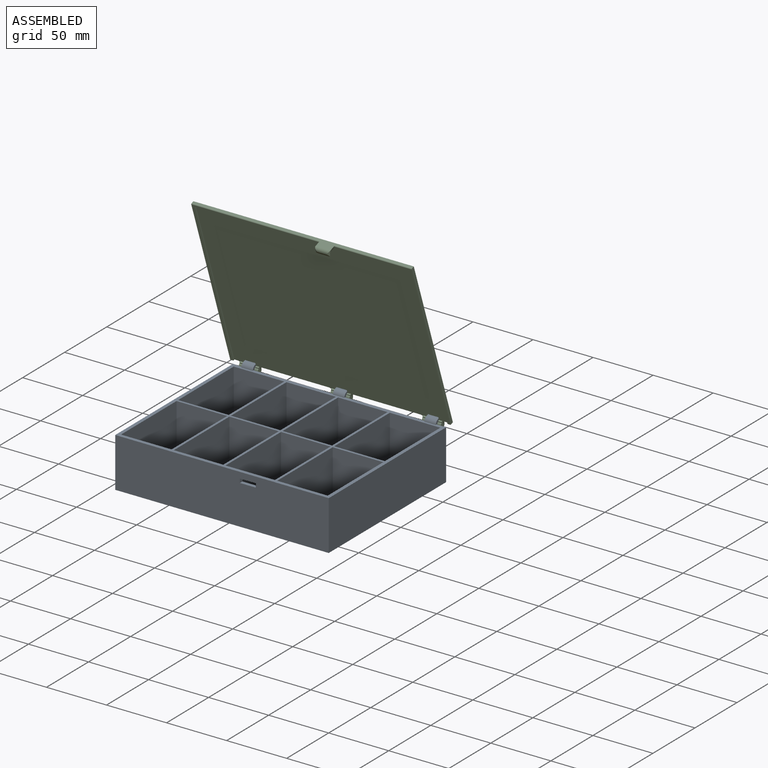
[diagram: assembled view]
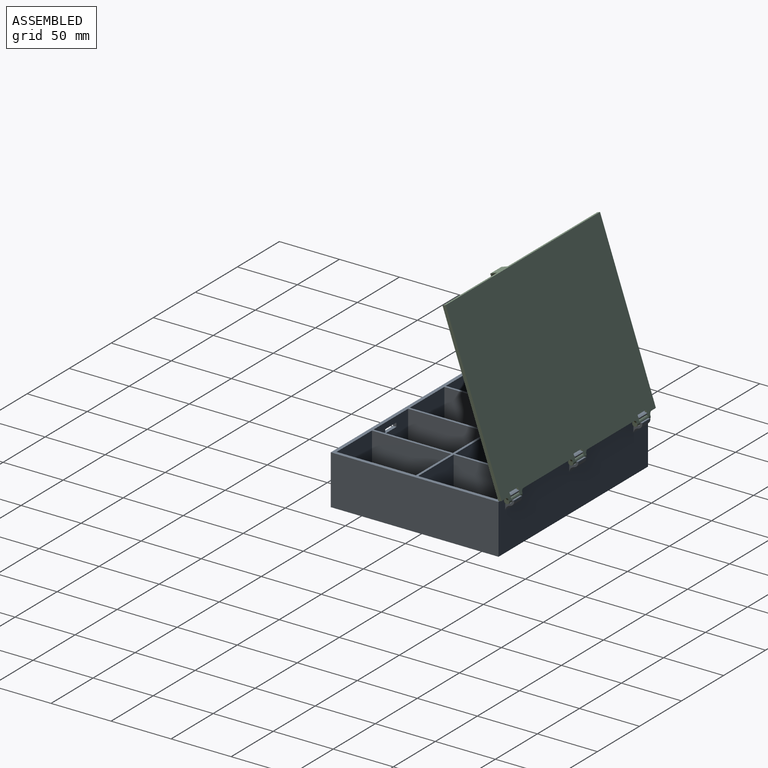
[diagram: assembled view, second angle]
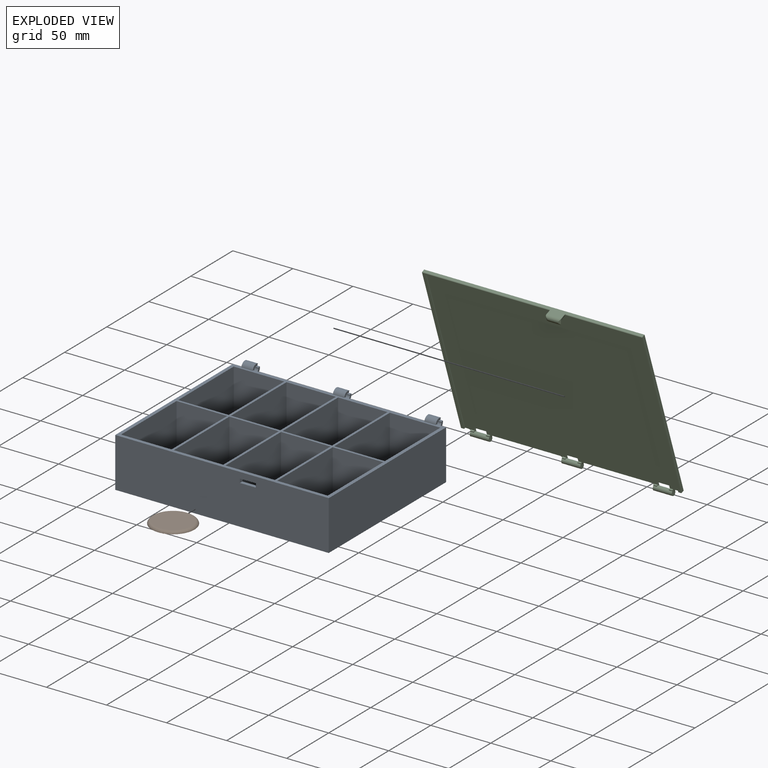
[diagram: exploded view]
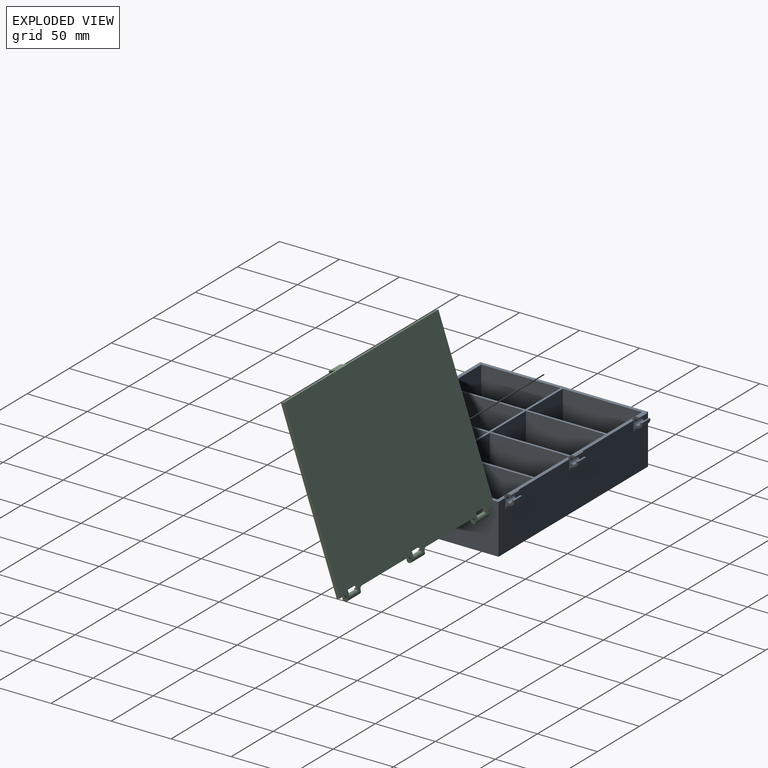
[diagram: exploded view, second angle]
ASSEMBLY  parts=3 mates=5
PART A: 208 faces, bbox 177.8x147.2x45 mm
  f0: cylinder r=0.76mm len=2.86mm, axis (0,0,-1), area 3.4mm2, adj f1,f15,f125,f132
  f1: plane 11.94x2.86mm, normal (0,1,0), area 34.1mm2, adj f0,f2,f125,f132
  f2: plane 2.86x2.86mm, normal (-1,0,0), area 8.2mm2, adj f1,f3,f125,f132
  f3: plane 11.94x2.86mm, normal (0,-1,0), area 34.1mm2, adj f2,f4,f125,f132
  f4: cylinder r=0.76mm len=2.86mm, axis (0,0,-1), area 3.4mm2, adj f3,f5,f125,f132
  f5: plane 11.94x2.86mm, normal (-1,0,0), area 34.1mm2, adj f4,f6,f125,f132
  f6: plane 2.86x2.86mm, normal (0,-1,0), area 8.2mm2, adj f5,f7,f125,f132
  f7: plane 11.94x2.86mm, normal (1,0,0), area 34.1mm2, adj f6,f8,f125,f132
  f8: cylinder r=0.76mm len=2.86mm, axis (0,0,-1), area 3.4mm2, adj f7,f9,f125,f132
  f9: plane 11.94x2.86mm, normal (0,-1,0), area 34.1mm2, adj f8,f10,f125,f132
  f10: plane 2.86x2.86mm, normal (1,0,0), area 8.2mm2, adj f9,f11,f125,f132
  f11: plane 11.94x2.86mm, normal (0,1,0), area 34.1mm2, adj f10,f12,f125,f132
  f12: cylinder r=0.76mm len=2.86mm, axis (0,0,-1), area 3.4mm2, adj f11,f13,f125,f132
  f13: plane 11.94x2.86mm, normal (1,0,0), area 34.1mm2, adj f12,f14,f125,f132
  f14: plane 2.86x2.86mm, normal (0,1,0), area 8.2mm2, adj f13,f15,f125,f132
  f15: plane 11.94x2.86mm, normal (-1,0,0), area 34.1mm2, adj f0,f14,f125,f132
  f16: cylinder r=0.76mm len=2.86mm, axis (0,0,-1), area 3.4mm2, adj f17,f31,f126,f132
  f17: plane 11.94x2.86mm, normal (0,1,0), area 34.1mm2, adj f16,f18,f126,f132
  f18: plane 2.86x2.86mm, normal (-1,0,0), area 8.2mm2, adj f17,f19,f126,f132
  f19: plane 11.94x2.86mm, normal (0,-1,0), area 34.1mm2, adj f18,f20,f126,f132
  f20: cylinder r=0.76mm len=2.86mm, axis (0,0,-1), area 3.4mm2, adj f19,f21,f126,f132
  f21: plane 11.94x2.86mm, normal (-1,0,0), area 34.1mm2, adj f20,f22,f126,f132
  f22: plane 2.86x2.86mm, normal (0,-1,0), area 8.2mm2, adj f21,f23,f126,f132
  f23: plane 11.94x2.86mm, normal (1,0,0), area 34.1mm2, adj f22,f24,f126,f132
  f24: cylinder r=0.76mm len=2.86mm, axis (0,0,-1), area 3.4mm2, adj f23,f25,f126,f132
  f25: plane 11.94x2.86mm, normal (0,-1,0), area 34.1mm2, adj f24,f26,f126,f132
  f26: plane 2.86x2.86mm, normal (1,0,0), area 8.2mm2, adj f25,f27,f126,f132
  f27: plane 11.94x2.86mm, normal (0,1,0), area 34.1mm2, adj f26,f28,f126,f132
  f28: cylinder r=0.76mm len=2.86mm, axis (0,0,-1), area 3.4mm2, adj f27,f29,f126,f132
  f29: plane 11.94x2.86mm, normal (1,0,0), area 34.1mm2, adj f28,f30,f126,f132
  f30: plane 2.86x2.86mm, normal (0,1,0), area 8.2mm2, adj f29,f31,f126,f132
  f31: plane 11.94x2.86mm, normal (-1,0,0), area 34.1mm2, adj f16,f30,f126,f132
  f32: cylinder r=0.76mm len=2.86mm, axis (0,0,-1), area 3.4mm2, adj f33,f47,f132,f137
  f33: plane 11.94x2.86mm, normal (0,1,0), area 34.1mm2, adj f32,f34,f132,f137
  f34: plane 2.86x2.86mm, normal (-1,0,0), area 8.2mm2, adj f33,f35,f132,f137
  f35: plane 11.94x2.86mm, normal (0,-1,0), area 34.1mm2, adj f34,f36,f132,f137
  f36: cylinder r=0.76mm len=2.86mm, axis (0,0,-1), area 3.4mm2, adj f35,f37,f132,f137
  f37: plane 11.94x2.86mm, normal (-1,0,0), area 34.1mm2, adj f36,f38,f132,f137
  f38: plane 2.86x2.86mm, normal (0,-1,0), area 8.2mm2, adj f37,f39,f132,f137
  f39: plane 11.94x2.86mm, normal (1,0,0), area 34.1mm2, adj f38,f40,f132,f137
  f40: cylinder r=0.76mm len=2.86mm, axis (0,0,-1), area 3.4mm2, adj f39,f41,f132,f137
  f41: plane 11.94x2.86mm, normal (0,-1,0), area 34.1mm2, adj f40,f42,f132,f137
  f42: plane 2.86x2.86mm, normal (1,0,0), area 8.2mm2, adj f41,f43,f132,f137
  f43: plane 11.94x2.86mm, normal (0,1,0), area 34.1mm2, adj f42,f44,f132,f137
  f44: cylinder r=0.76mm len=2.86mm, axis (0,0,-1), area 3.4mm2, adj f43,f45,f132,f137
  f45: plane 11.94x2.86mm, normal (1,0,0), area 34.1mm2, adj f44,f46,f132,f137
  f46: plane 2.86x2.86mm, normal (0,1,0), area 8.2mm2, adj f45,f47,f132,f137
  f47: plane 11.94x2.86mm, normal (-1,0,0), area 34.1mm2, adj f32,f46,f132,f137
  f48: cylinder r=0.76mm len=2.86mm, axis (0,0,-1), area 3.4mm2, adj f49,f63,f124,f132
  f49: plane 11.94x2.86mm, normal (0,1,0), area 34.1mm2, adj f48,f50,f124,f132
  f50: plane 2.86x2.86mm, normal (-1,0,0), area 8.2mm2, adj f49,f51,f124,f132
  f51: plane 11.94x2.86mm, normal (0,-1,0), area 34.1mm2, adj f50,f52,f124,f132
  f52: cylinder r=0.76mm len=2.86mm, axis (0,0,-1), area 3.4mm2, adj f51,f53,f124,f132
  f53: plane 11.94x2.86mm, normal (-1,0,0), area 34.1mm2, adj f52,f54,f124,f132
  f54: plane 2.86x2.86mm, normal (0,-1,0), area 8.2mm2, adj f53,f55,f124,f132
  f55: plane 11.94x2.86mm, normal (1,0,0), area 34.1mm2, adj f54,f56,f124,f132
  f56: cylinder r=0.76mm len=2.86mm, axis (0,0,-1), area 3.4mm2, adj f55,f57,f124,f132
  f57: plane 11.94x2.86mm, normal (0,-1,0), area 34.1mm2, adj f56,f58,f124,f132
  f58: plane 2.86x2.86mm, normal (1,0,0), area 8.2mm2, adj f57,f59,f124,f132
  f59: plane 11.94x2.86mm, normal (0,1,0), area 34.1mm2, adj f58,f60,f124,f132
  f60: cylinder r=0.76mm len=2.86mm, axis (0,0,-1), area 3.4mm2, adj f59,f61,f124,f132
  f61: plane 11.94x2.86mm, normal (1,0,0), area 34.1mm2, adj f60,f62,f124,f132
  f62: plane 2.86x2.86mm, normal (0,1,0), area 8.2mm2, adj f61,f63,f124,f132
  f63: plane 11.94x2.86mm, normal (-1,0,0), area 34.1mm2, adj f48,f62,f124,f132
  f64: cylinder r=0.76mm len=2.86mm, axis (0,0,-1), area 3.4mm2, adj f65,f79,f123,f132
  f65: plane 11.94x2.86mm, normal (0,1,0), area 34.1mm2, adj f64,f66,f123,f132
  f66: plane 2.86x2.86mm, normal (-1,0,0), area 8.2mm2, adj f65,f67,f123,f132
  f67: plane 11.94x2.86mm, normal (0,-1,0), area 34.1mm2, adj f66,f68,f123,f132
  f68: cylinder r=0.76mm len=2.86mm, axis (0,0,-1), area 3.4mm2, adj f67,f69,f123,f132
  f69: plane 11.94x2.86mm, normal (-1,0,0), area 34.1mm2, adj f68,f70,f123,f132
  f70: plane 2.86x2.86mm, normal (0,-1,0), area 8.2mm2, adj f69,f71,f123,f132
  f71: plane 11.94x2.86mm, normal (1,0,0), area 34.1mm2, adj f70,f72,f123,f132
  f72: cylinder r=0.76mm len=2.86mm, axis (0,0,-1), area 3.4mm2, adj f71,f73,f123,f132
  f73: plane 11.94x2.86mm, normal (0,-1,0), area 34.1mm2, adj f72,f74,f123,f132
  f74: plane 2.86x2.86mm, normal (1,0,0), area 8.2mm2, adj f73,f75,f123,f132
  f75: plane 11.94x2.86mm, normal (0,1,0), area 34.1mm2, adj f74,f76,f123,f132
  f76: cylinder r=0.76mm len=2.86mm, axis (0,0,-1), area 3.4mm2, adj f75,f77,f123,f132
  f77: plane 11.94x2.86mm, normal (1,0,0), area 34.1mm2, adj f76,f78,f123,f132
  f78: plane 2.86x2.86mm, normal (0,1,0), area 8.2mm2, adj f77,f79,f123,f132
  f79: plane 11.94x2.86mm, normal (-1,0,0), area 34.1mm2, adj f64,f78,f123,f132
  f80: cylinder r=0.76mm len=2.86mm, axis (0,0,-1), area 3.4mm2, adj f81,f95,f122,f132
  f81: plane 11.94x2.86mm, normal (0,1,0), area 34.1mm2, adj f80,f82,f122,f132
  f82: plane 2.86x2.86mm, normal (-1,0,0), area 8.2mm2, adj f81,f83,f122,f132
  f83: plane 11.94x2.86mm, normal (0,-1,0), area 34.1mm2, adj f82,f84,f122,f132
  f84: cylinder r=0.76mm len=2.86mm, axis (0,0,-1), area 3.4mm2, adj f83,f85,f122,f132
  f85: plane 11.94x2.86mm, normal (-1,0,0), area 34.1mm2, adj f84,f86,f122,f132
  f86: plane 2.86x2.86mm, normal (0,-1,0), area 8.2mm2, adj f85,f87,f122,f132
  f87: plane 11.94x2.86mm, normal (1,0,0), area 34.1mm2, adj f86,f88,f122,f132
  f88: cylinder r=0.76mm len=2.86mm, axis (0,0,-1), area 3.4mm2, adj f87,f89,f122,f132
  f89: plane 11.94x2.86mm, normal (0,-1,0), area 34.1mm2, adj f88,f90,f122,f132
  f90: plane 2.86x2.86mm, normal (1,0,0), area 8.2mm2, adj f89,f91,f122,f132
  f91: plane 11.94x2.86mm, normal (0,1,0), area 34.1mm2, adj f90,f92,f122,f132
  f92: cylinder r=0.76mm len=2.86mm, axis (0,0,-1), area 3.4mm2, adj f91,f93,f122,f132
  f93: plane 11.94x2.86mm, normal (1,0,0), area 34.1mm2, adj f92,f94,f122,f132
  f94: plane 2.86x2.86mm, normal (0,1,0), area 8.2mm2, adj f93,f95,f122,f132
  f95: plane 11.94x2.86mm, normal (-1,0,0), area 34.1mm2, adj f80,f94,f122,f132
  f96: cylinder r=0.76mm len=2.86mm, axis (0,0,-1), area 3.4mm2, adj f97,f111,f121,f132
  f97: plane 11.94x2.86mm, normal (0,1,0), area 34.1mm2, adj f96,f98,f121,f132
  f98: plane 2.86x2.86mm, normal (-1,0,0), area 8.2mm2, adj f97,f99,f121,f132
  f99: plane 11.94x2.86mm, normal (0,-1,0), area 34.1mm2, adj f98,f100,f121,f132
  f100: cylinder r=0.76mm len=2.86mm, axis (0,0,-1), area 3.4mm2, adj f99,f101,f121,f132
  f101: plane 11.94x2.86mm, normal (-1,0,0), area 34.1mm2, adj f100,f102,f121,f132
  f102: plane 2.86x2.86mm, normal (0,-1,0), area 8.2mm2, adj f101,f103,f121,f132
  f103: plane 11.94x2.86mm, normal (1,0,0), area 34.1mm2, adj f102,f104,f121,f132
  f104: cylinder r=0.76mm len=2.86mm, axis (0,0,-1), area 3.4mm2, adj f103,f105,f121,f132
  f105: plane 11.94x2.86mm, normal (0,-1,0), area 34.1mm2, adj f104,f106,f121,f132
  f106: plane 2.86x2.86mm, normal (1,0,0), area 8.2mm2, adj f105,f107,f121,f132
  f107: plane 11.94x2.86mm, normal (0,1,0), area 34.1mm2, adj f106,f108,f121,f132
  f108: cylinder r=0.76mm len=2.86mm, axis (0,0,-1), area 3.4mm2, adj f107,f109,f121,f132
  f109: plane 11.94x2.86mm, normal (1,0,0), area 34.1mm2, adj f108,f110,f121,f132
  f110: plane 2.86x2.86mm, normal (0,1,0), area 8.2mm2, adj f109,f111,f121,f132
  f111: plane 11.94x2.86mm, normal (-1,0,0), area 34.1mm2, adj f96,f110,f121,f132
  f112: plane 66.04x38.42mm, normal (-1,0,0), area 2537.1mm2, adj f114,f123,f127,f150
  f113: plane 41.12x38.42mm, normal (0,-1,0), area 1579.6mm2, adj f121,f127,f141,f148
  f114: plane 42.07x38.42mm, normal (0,-1,0), area 1616.2mm2, adj f112,f123,f127,f145
  f115: plane 41.12x38.42mm, normal (0,-1,0), area 1579.6mm2, adj f122,f127,f144,f149
  f116: plane 66.04x38.42mm, normal (1,0,0), area 2537.1mm2, adj f120,f127,f134,f157
  f117: plane 41.12x38.42mm, normal (0,1,0), area 1579.6mm2, adj f127,f137,f139,f147
  f118: plane 42.07x38.42mm, normal (0,1,0), area 1616.2mm2, adj f125,f127,f133,f142
  f119: plane 41.12x38.42mm, normal (0,1,0), area 1536.6mm2, adj f126,f127,f143,f146,f204,f205,f206,f207
  f120: plane 66.04x42.07mm, normal (0,0,1), area 2624.4mm2, adj f116,f134,f140,f157,f158,f159,f160,f161
  f121: plane 66.04x41.12mm, normal (0,0,1), area 2561.5mm2, adj f96,f97,f98,f99,f100,f101,f102,f103
  f122: plane 66.04x41.12mm, normal (0,0,1), area 2561.5mm2, adj f80,f81,f82,f83,f84,f85,f86,f87
  f123: plane 66.04x42.07mm, normal (0,0,1), area 2624.4mm2, adj f64,f65,f66,f67,f68,f69,f70,f71
  f124: plane 66.04x42.07mm, normal (0,0,1), area 2624.4mm2, adj f48,f49,f50,f51,f52,f53,f54,f55
  f125: plane 66.04x42.07mm, normal (0,0,1), area 2624.4mm2, adj f0,f1,f2,f3,f4,f5,f6,f7
  f126: plane 66.04x41.12mm, normal (0,0,1), area 2561.5mm2, adj f16,f17,f18,f19,f20,f21,f22,f23
  f127: plane 177.8x139.7mm, normal (0,0,1), area 2831.5mm2, adj f112,f113,f114,f115,f116,f117,f118,f119
  f128: plane 139.7x41.28mm, normal (1,0,0), area 5766.1mm2, adj f127,f129,f131,f132
  f129: plane 177.8x41.53mm, normal (0,1,0), area 7057.7mm2, adj f127,f128,f130,f132,f179,f180,f186,f187
  f130: plane 139.7x41.28mm, normal (-1,0,0), area 5766.1mm2, adj f127,f129,f131,f132
  f131: plane 177.8x41.28mm, normal (0,-1,0), area 7295.8mm2, adj f127,f128,f130,f132,f204,f205,f206,f207
  f132: plane 177.8x139.7mm, normal (0,0,-1), area 23608.1mm2, adj f0,f1,f2,f3,f4,f5,f6,f7
  f133: plane 66.04x38.42mm, normal (-1,0,0), area 2537.1mm2, adj f118,f125,f127,f151
  f134: plane 42.07x38.42mm, normal (0,-1,0), area 1616.2mm2, adj f116,f120,f127,f140
  f135: plane 66.04x38.42mm, normal (1,0,0), area 2537.1mm2, adj f124,f127,f136,f156
  f136: plane 42.07x38.42mm, normal (0,1,0), area 1616.2mm2, adj f124,f127,f135,f138
  f137: plane 66.04x41.12mm, normal (0,0,1), area 2561.5mm2, adj f32,f33,f34,f35,f36,f37,f38,f39
  f138: plane 66.04x38.42mm, normal (-1,0,0), area 2537.1mm2, adj f124,f127,f136,f156
  f139: plane 66.04x38.42mm, normal (1,0,0), area 2537.1mm2, adj f117,f127,f137,f153
  f140: plane 66.04x38.42mm, normal (-1,0,0), area 2537.1mm2, adj f120,f127,f134,f157
  f141: plane 66.04x38.42mm, normal (1,0,0), area 2537.1mm2, adj f113,f121,f127,f152
  f142: plane 66.04x38.42mm, normal (1,0,0), area 2537.1mm2, adj f118,f125,f127,f151
  f143: plane 66.04x38.42mm, normal (-1,0,0), area 2537.1mm2, adj f119,f126,f127,f155
  f144: plane 66.04x38.42mm, normal (-1,0,0), area 2537.1mm2, adj f115,f122,f127,f154
  f145: plane 66.04x38.42mm, normal (1,0,0), area 2537.1mm2, adj f114,f123,f127,f150
  f146: plane 66.04x38.42mm, normal (1,0,0), area 2537.1mm2, adj f119,f126,f127,f155
  f147: plane 66.04x38.42mm, normal (-1,0,0), area 2537.1mm2, adj f117,f127,f137,f153
  f148: plane 66.04x38.42mm, normal (-1,0,0), area 2537.1mm2, adj f113,f121,f127,f152
  f149: plane 66.04x38.42mm, normal (1,0,0), area 2537.1mm2, adj f115,f122,f127,f154
  f150: plane 42.07x38.42mm, normal (0,1,0), area 1616.2mm2, adj f112,f123,f127,f145
  f151: plane 42.07x38.42mm, normal (0,-1,0), area 1616.2mm2, adj f125,f127,f133,f142
  f152: plane 41.12x38.42mm, normal (0,1,0), area 1579.6mm2, adj f121,f127,f141,f148
  f153: plane 41.12x38.42mm, normal (0,-1,0), area 1579.6mm2, adj f127,f137,f139,f147
  f154: plane 41.12x38.42mm, normal (0,1,0), area 1579.6mm2, adj f122,f127,f144,f149
  f155: plane 41.12x38.42mm, normal (0,-1,0), area 1579.6mm2, adj f126,f127,f143,f146
  f156: plane 42.07x38.42mm, normal (0,-1,0), area 1616.2mm2, adj f124,f127,f135,f138
  f157: plane 42.07x38.42mm, normal (0,1,0), area 1616.2mm2, adj f116,f120,f127,f140
  f158: cylinder r=0.76mm len=2.86mm, axis (0,0,-1), area 3.4mm2, adj f120,f132,f159,f173
  f159: plane 11.94x2.86mm, normal (0,1,0), area 34.1mm2, adj f120,f132,f158,f160
  f160: plane 2.86x2.86mm, normal (-1,0,0), area 8.2mm2, adj f120,f132,f159,f161
  f161: plane 11.94x2.86mm, normal (0,-1,0), area 34.1mm2, adj f120,f132,f160,f162
  f162: cylinder r=0.76mm len=2.86mm, axis (0,0,-1), area 3.4mm2, adj f120,f132,f161,f163
  f163: plane 11.94x2.86mm, normal (-1,0,0), area 34.1mm2, adj f120,f132,f162,f164
  f164: plane 2.86x2.86mm, normal (0,-1,0), area 8.2mm2, adj f120,f132,f163,f165
  f165: plane 11.94x2.86mm, normal (1,0,0), area 34.1mm2, adj f120,f132,f164,f166
  f166: cylinder r=0.76mm len=2.86mm, axis (0,0,-1), area 3.4mm2, adj f120,f132,f165,f167
  f167: plane 11.94x2.86mm, normal (0,-1,0), area 34.1mm2, adj f120,f132,f166,f168
  f168: plane 2.86x2.86mm, normal (1,0,0), area 8.2mm2, adj f120,f132,f167,f169
  f169: plane 11.94x2.86mm, normal (0,1,0), area 34.1mm2, adj f120,f132,f168,f170
  f170: cylinder r=0.76mm len=2.86mm, axis (0,0,-1), area 3.4mm2, adj f120,f132,f169,f171
  f171: plane 11.94x2.86mm, normal (1,0,0), area 34.1mm2, adj f120,f132,f170,f172
  f172: plane 2.86x2.86mm, normal (0,1,0), area 8.2mm2, adj f120,f132,f171,f173
  f173: plane 11.94x2.86mm, normal (-1,0,0), area 34.1mm2, adj f120,f132,f158,f172
  f174: cylinder r=4.32mm len=9.53mm, axis (-1,0,0), area 63.4mm2, adj f178,f179,f180,f203
  f175: cylinder r=2.54mm len=9.53mm, axis (-1,0,0), area 128.8mm2, adj f176,f178,f179,f180
  f176: plane 9.53x1.61mm, normal (0,0.91,-0.42), area 16.9mm2, adj f175,f177,f179,f180
  f177: cylinder r=4.32mm len=10.03mm, axis (-1,0,0), area 76.5mm2, adj f127,f176,f179,f180,f199,f200
  f178: plane 9.53x1.75mm, normal (0,-0.17,0.98), area 16.9mm2, adj f174,f175,f179,f180
  f179: plane 13.52x8.54mm, normal (1,0,0), area 35.3mm2, adj f129,f174,f175,f176,f177,f178,f199,f203
  f180: plane 13.52x8.54mm, normal (-1,0,0), area 35.3mm2, adj f129,f174,f175,f176,f177,f178,f200,f203
  f181: cylinder r=4.32mm len=9.53mm, axis (-1,0,0), area 63.4mm2, adj f185,f186,f187,f202
  f182: cylinder r=2.54mm len=9.53mm, axis (-1,0,0), area 128.8mm2, adj f183,f185,f186,f187
  f183: plane 9.53x1.61mm, normal (0,0.91,-0.42), area 16.9mm2, adj f182,f184,f186,f187
  f184: cylinder r=4.32mm len=10.03mm, axis (-1,0,0), area 76.5mm2, adj f127,f183,f186,f187,f197,f198
  f185: plane 9.53x1.75mm, normal (0,-0.17,0.98), area 16.9mm2, adj f181,f182,f186,f187
  f186: plane 13.52x8.54mm, normal (1,0,0), area 35.3mm2, adj f129,f181,f182,f183,f184,f185,f197,f202
  f187: plane 13.52x8.54mm, normal (-1,0,0), area 35.3mm2, adj f129,f181,f182,f183,f184,f185,f198,f202
  f188: cylinder r=4.32mm len=9.53mm, axis (-1,0,0), area 63.4mm2, adj f192,f193,f194,f201
  f189: cylinder r=2.54mm len=9.53mm, axis (-1,0,0), area 128.8mm2, adj f190,f192,f193,f194
  f190: plane 9.53x1.61mm, normal (0,0.91,-0.42), area 16.9mm2, adj f189,f191,f193,f194
  f191: cylinder r=4.32mm len=10.03mm, axis (-1,0,0), area 76.5mm2, adj f127,f190,f193,f194,f195,f196
  f192: plane 9.53x1.75mm, normal (0,-0.17,0.98), area 16.9mm2, adj f188,f189,f193,f194
  f193: plane 13.52x8.54mm, normal (1,0,0), area 35.3mm2, adj f129,f188,f189,f190,f191,f192,f195,f201
  f194: plane 13.52x8.54mm, normal (-1,0,0), area 35.3mm2, adj f129,f188,f189,f190,f191,f192,f196,f201
  f195: cylinder r=0.25mm len=1.1mm, axis (0,-1,0), area 0.4mm2, adj f127,f129,f191,f193
  f196: cylinder r=0.25mm len=1.1mm, axis (0,1,0), area 0.4mm2, adj f127,f129,f191,f194
  f197: cylinder r=0.25mm len=1.1mm, axis (0,-1,0), area 0.4mm2, adj f127,f129,f184,f186
  f198: cylinder r=0.25mm len=1.1mm, axis (0,1,0), area 0.4mm2, adj f127,f129,f184,f187
  f199: cylinder r=0.25mm len=1.1mm, axis (0,-1,0), area 0.4mm2, adj f127,f129,f177,f179
  f200: cylinder r=0.25mm len=1.1mm, axis (0,1,0), area 0.4mm2, adj f127,f129,f177,f180
  f201: cylinder r=5.08mm len=9.53mm, axis (-1,0,0), area 66.1mm2, adj f129,f188,f193,f194
  f202: cylinder r=5.08mm len=9.53mm, axis (-1,0,0), area 66.1mm2, adj f129,f181,f186,f187
  f203: cylinder r=5.08mm len=9.53mm, axis (-1,0,0), area 66.1mm2, adj f129,f174,f179,f180
  f204: plane 3.25x2.86mm, normal (1,0,0), area 9.3mm2, adj f119,f131,f205,f206
  f205: plane 13.21x2.86mm, normal (0,0,-1), area 37.7mm2, adj f119,f131,f204,f207
  f206: plane 13.21x2.86mm, normal (0,0,1), area 37.7mm2, adj f119,f131,f204,f207
  f207: plane 3.25x2.86mm, normal (-1,0,0), area 9.3mm2, adj f119,f131,f205,f206
PART B: 24 faces, bbox 38.6x38.6x4.6 mm
  f0: plane 35.56x35.56mm, normal (0,0,-1), area 854.4mm2, adj f1,f3,f4,f5,f6,f7,f8,f9
  f1: torus R=15.24mm, axis (0,0,-1), area 369.7mm2, adj f0,f2
  f2: plane 30.48x30.48mm, normal (0,0,1), area 729.7mm2, adj f1
  f3: plane 11.13x2.54mm, normal (1,0,0), area 28.3mm2, adj f0,f14,f15,f16
  f4: plane 2.54x1.8mm, normal (0,-1,0), area 4.6mm2, adj f0,f15,f16,f17
  f5: plane 11.13x2.54mm, normal (-1,0,0), area 28.3mm2, adj f0,f6,f15,f17
  f6: plane 11.13x2.54mm, normal (0,-1,0), area 28.3mm2, adj f0,f5,f15,f18
  f7: plane 2.54x1.8mm, normal (-1,0,0), area 4.6mm2, adj f0,f15,f18,f19
  f8: plane 11.13x2.54mm, normal (0,1,0), area 28.3mm2, adj f0,f9,f15,f19
  f9: plane 11.13x2.54mm, normal (-1,0,0), area 28.3mm2, adj f0,f8,f15,f20
  f10: plane 2.54x1.8mm, normal (0,1,0), area 4.6mm2, adj f0,f15,f20,f21
  f11: plane 11.13x2.54mm, normal (1,0,0), area 28.3mm2, adj f0,f12,f15,f21
  f12: plane 11.13x2.54mm, normal (0,1,0), area 28.3mm2, adj f0,f11,f15,f22
  f13: plane 2.54x1.8mm, normal (1,0,0), area 4.6mm2, adj f0,f15,f22,f23
  f14: plane 11.13x2.54mm, normal (0,-1,0), area 28.3mm2, adj f0,f3,f15,f23
  f15: plane 26.09x26.09mm, normal (0,0,-1), area 138.7mm2, adj f3,f4,f5,f6,f7,f8,f9,f10
  f16: cylinder r=0.51mm len=2.54mm, axis (0,0,-1), area 2mm2, adj f0,f3,f4,f15
  f17: cylinder r=0.51mm len=2.54mm, axis (0,0,1), area 2mm2, adj f0,f4,f5,f15
  f18: cylinder r=0.51mm len=2.54mm, axis (0,0,1), area 2mm2, adj f0,f6,f7,f15
  f19: cylinder r=0.51mm len=2.54mm, axis (0,0,-1), area 2mm2, adj f0,f7,f8,f15
  f20: cylinder r=0.51mm len=2.54mm, axis (0,0,-1), area 2mm2, adj f0,f9,f10,f15
  f21: cylinder r=0.51mm len=2.54mm, axis (0,0,1), area 2mm2, adj f0,f10,f11,f15
  f22: cylinder r=0.51mm len=2.54mm, axis (0,0,1), area 2mm2, adj f0,f12,f13,f15
  f23: cylinder r=0.51mm len=2.54mm, axis (0,0,-1), area 2mm2, adj f0,f13,f14,f15
PART C: 77 faces, bbox 183.8x150.6x12.1 mm
  f0: plane 142.24x107.7mm, normal (0,0,-1), area 515.9mm2, adj f1,f6,f8,f14,f62,f75
  f1: plane 105.24x1.41mm, normal (0,1,0), area 133.4mm2, adj f0,f2,f14,f62,f74
  f2: plane 178.31x143.39mm, normal (0,0,-1), area 25034.3mm2, adj f1,f3,f4,f5,f6,f12,f13,f14
  f3: plane 5.08x2.86mm, normal (0,1,0), area 11.4mm2, adj f2,f7,f10,f11,f12,f48
  f4: plane 55.25x1.59mm, normal (0,1,0), area 87.7mm2, adj f2,f11,f49,f50
  f5: plane 55.25x1.59mm, normal (0,1,0), area 87.7mm2, adj f2,f11,f51,f52
  f6: plane 5.08x2.86mm, normal (0,1,0), area 11.4mm2, adj f0,f2,f8,f11,f14,f53
  f7: plane 142.88x2.86mm, normal (1,0,0), area 408.2mm2, adj f3,f9,f10,f11,f76
  f8: plane 142.88x2.86mm, normal (-1,0,0), area 408.2mm2, adj f0,f6,f9,f11,f75
  f9: plane 183.52x7.43mm, normal (0,-1,0), area 472.7mm2, adj f7,f8,f11,f60,f61,f62,f65,f71
  f10: plane 142.24x65.39mm, normal (0,0,-1), area 457mm2, adj f3,f7,f12,f13,f65,f76
  f11: plane 183.52x142.88mm, normal (0,0,1), area 26142.3mm2, adj f3,f4,f5,f6,f7,f8,f9,f19
  f12: plane 140.85x1.27mm, normal (-1,0,0), area 178.9mm2, adj f2,f3,f10,f13
  f13: plane 62.92x1.41mm, normal (0,1,0), area 79.6mm2, adj f2,f10,f12,f65,f72
  f14: plane 140.85x1.27mm, normal (1,0,0), area 178.9mm2, adj f0,f1,f2,f6
  f15: plane 2.86x1.27mm, normal (0,-1,0), area 3.6mm2, adj f2,f22,f24,f25
  f16: plane 2.86x1.27mm, normal (0,-1,0), area 3.6mm2, adj f2,f17,f20,f21
  f17: plane 2.86x0.82mm, normal (0,-0.09,-1), area 2.3mm2, adj f16,f18,f20,f21
  f18: cylinder r=2.16mm len=15.88mm, axis (-1,0,0), area 191.6mm2, adj f17,f19,f20,f21,f22,f23,f24,f25
  f19: plane 5.42x2.93mm, normal (0,0.02,1), area 9.7mm2, adj f11,f18,f20,f21,f52
  f20: plane 5.02x4.33mm, normal (1,0,0), area 13.8mm2, adj f2,f16,f17,f18,f19,f52
  f21: plane 5.45x2.93mm, normal (-1,0,0), area 7.1mm2, adj f2,f11,f16,f17,f18,f19,f56
  f22: plane 5.45x2.93mm, normal (1,0,0), area 7.1mm2, adj f2,f11,f15,f18,f23,f24,f56
  f23: plane 5.42x2.93mm, normal (0,0.02,1), area 9.7mm2, adj f11,f18,f22,f25,f53
  f24: plane 2.86x0.82mm, normal (0,-0.09,-1), area 2.3mm2, adj f15,f18,f22,f25
  f25: plane 5.02x4.33mm, normal (-1,0,0), area 13.8mm2, adj f2,f15,f18,f23,f24,f53
  f26: plane 2.86x1.27mm, normal (0,-1,0), area 3.6mm2, adj f2,f34,f35,f36
  f27: cylinder r=2.16mm len=15.88mm, axis (-1,0,0), area 191.6mm2, adj f28,f30,f31,f32,f33,f34,f35,f36
  f28: plane 5.45x2.93mm, normal (-1,0,0), area 7.1mm2, adj f2,f11,f27,f29,f30,f31,f54
  f29: plane 2.86x1.27mm, normal (0,-1,0), area 3.6mm2, adj f2,f28,f30,f32
  f30: plane 2.86x0.82mm, normal (0,-0.09,-1), area 2.3mm2, adj f27,f28,f29,f32
  f31: plane 5.42x2.93mm, normal (0,0.02,1), area 9.7mm2, adj f11,f27,f28,f32,f50
  f32: plane 5.02x4.33mm, normal (1,0,0), area 13.8mm2, adj f2,f27,f29,f30,f31,f50
  f33: plane 5.42x2.93mm, normal (0,0.02,1), area 9.7mm2, adj f11,f27,f35,f36,f51
  f34: plane 2.86x0.82mm, normal (0,-0.09,-1), area 2.3mm2, adj f26,f27,f35,f36
  f35: plane 5.02x4.33mm, normal (-1,0,0), area 13.8mm2, adj f2,f26,f27,f33,f34,f51
  f36: plane 5.45x2.93mm, normal (1,0,0), area 7.1mm2, adj f2,f11,f26,f27,f33,f34,f54
  f37: plane 2.86x1.27mm, normal (0,-1,0), area 3.6mm2, adj f2,f44,f46,f47
  f38: plane 2.86x1.27mm, normal (0,-1,0), area 3.6mm2, adj f2,f39,f42,f43
  f39: plane 2.86x0.82mm, normal (0,-0.09,-1), area 2.3mm2, adj f38,f40,f42,f43
  f40: cylinder r=2.16mm len=15.88mm, axis (-1,0,0), area 191.6mm2, adj f39,f41,f42,f43,f44,f45,f46,f47
  f41: plane 5.42x2.93mm, normal (0,0.02,1), area 9.7mm2, adj f11,f40,f42,f43,f48
  f42: plane 5.02x4.33mm, normal (1,0,0), area 13.8mm2, adj f2,f38,f39,f40,f41,f48
  f43: plane 5.45x2.93mm, normal (-1,0,0), area 7.1mm2, adj f2,f11,f38,f39,f40,f41,f55
  f44: plane 5.45x2.93mm, normal (1,0,0), area 7.1mm2, adj f2,f11,f37,f40,f45,f46,f55
  f45: plane 5.42x2.93mm, normal (0,0.02,1), area 9.7mm2, adj f11,f40,f44,f47,f49
  f46: plane 2.86x0.82mm, normal (0,-0.09,-1), area 2.3mm2, adj f37,f40,f44,f47
  f47: plane 5.02x4.33mm, normal (-1,0,0), area 13.8mm2, adj f2,f37,f40,f45,f46,f49
  f48: cylinder r=2.54mm len=2.54mm, axis (0,0,-1), area 6.2mm2, adj f2,f3,f41,f42
  f49: cylinder r=2.54mm len=2.54mm, axis (0,0,-1), area 6.2mm2, adj f2,f4,f45,f47
  f50: cylinder r=2.54mm len=2.54mm, axis (0,0,-1), area 6.2mm2, adj f2,f4,f31,f32
  f51: cylinder r=2.54mm len=2.54mm, axis (0,0,-1), area 6.2mm2, adj f2,f5,f33,f35
  f52: cylinder r=2.54mm len=2.54mm, axis (0,0,-1), area 6.2mm2, adj f2,f5,f19,f20
  f53: cylinder r=2.54mm len=2.54mm, axis (0,0,-1), area 6.2mm2, adj f2,f6,f23,f25
  f54: plane 10.16x1.59mm, normal (0,1,0), area 16.1mm2, adj f2,f11,f28,f36
  f55: plane 10.16x1.59mm, normal (0,1,0), area 16.1mm2, adj f2,f11,f43,f44
  f56: plane 10.16x1.59mm, normal (0,1,0), area 16.1mm2, adj f2,f11,f21,f22
  f57: plane 11.72x3.15mm, normal (0,0.49,-0.87), area 33.3mm2, adj f58,f63,f68,f69,f70,f71
  f58: plane 7.37x1.55mm, normal (0,0.49,0.87), area 13.1mm2, adj f57,f63,f66,f68
  f59: plane 7.37x3.2mm, normal (0,1,0), area 23.6mm2, adj f62,f65,f66,f73
  f60: plane 2.13x0.47mm, normal (1,0,0), area 0.3mm2, adj f9,f67,f69
  f61: plane 2.13x0.47mm, normal (-1,0,0), area 0.3mm2, adj f9,f64,f70
  f62: cylinder r=2.54mm len=3.2mm, axis (0,0,1), area 11.1mm2, adj f0,f1,f9,f59,f64,f74,f75
  f63: cylinder r=2.54mm len=2.22mm, axis (0,-0.87,0.49), area 3.6mm2, adj f57,f58,f64,f70
  f64: torus R=5.08mm, axis (1,0,0), area 12.8mm2, adj f61,f62,f63,f66,f70
  f65: cylinder r=2.54mm len=3.2mm, axis (0,0,-1), area 11.1mm2, adj f9,f10,f13,f59,f67,f72,f76
  f66: cylinder r=2.54mm len=7.37mm, axis (-1,0,0), area 19.9mm2, adj f58,f59,f64,f67
  f67: torus R=5.08mm, axis (1,0,0), area 12.8mm2, adj f60,f65,f66,f68,f69
  f68: cylinder r=2.54mm len=2.22mm, axis (0,0.87,-0.49), area 3.6mm2, adj f57,f58,f67,f69
  f69: cylinder r=2.54mm len=4.36mm, axis (0,-1,0), area 7.5mm2, adj f57,f60,f67,f68,f71
  f70: cylinder r=2.54mm len=4.36mm, axis (0,1,0), area 7.5mm2, adj f57,f61,f63,f64,f71
  f71: cylinder r=2.54mm len=12.45mm, axis (1,0,0), area 42.3mm2, adj f9,f57,f69,f70
  f72: torus R=3.05mm, axis (0,0,-1), area 1.6mm2, adj f2,f13,f65,f73
  f73: cylinder r=0.51mm len=7.37mm, axis (-1,0,0), area 5.9mm2, adj f2,f59,f72,f74
  f74: torus R=3.05mm, axis (0,0,-1), area 1.6mm2, adj f1,f2,f62,f73
  f75: cylinder r=0.64mm len=106.77mm, axis (-1,0,0), area 106.5mm2, adj f0,f8,f9,f62
  f76: cylinder r=0.64mm len=64.46mm, axis (-1,0,0), area 64.3mm2, adj f7,f9,f10,f65
PLACE A at identity fixed
PLACE B t=(-22.01,-34.43,2.86)mm
PLACE C rot(axis=(-1,0,0),71deg) t=(-0.32,50.92,111.61)mm
MATE planar B.f8 <-> A.f41  axis (0,1,0) through (-28.98,-33.02,1.59)mm
MATE planar B.f1 <-> A.f137  axis (0,0,-1) through (-22.01,-34.43,2.86)mm
MATE planar C.f28 <-> A.f179  axis (-1,0,0) through (4.76,73.16,44.17)mm
MATE cylindrical C.f18 <-> A.f174  axis (-1,0,0) through (-0.32,73.03,40.64)mm
MATE planar B.f5 <-> A.f45  axis (-1,0,0) through (-23.42,-41.4,1.59)mm
